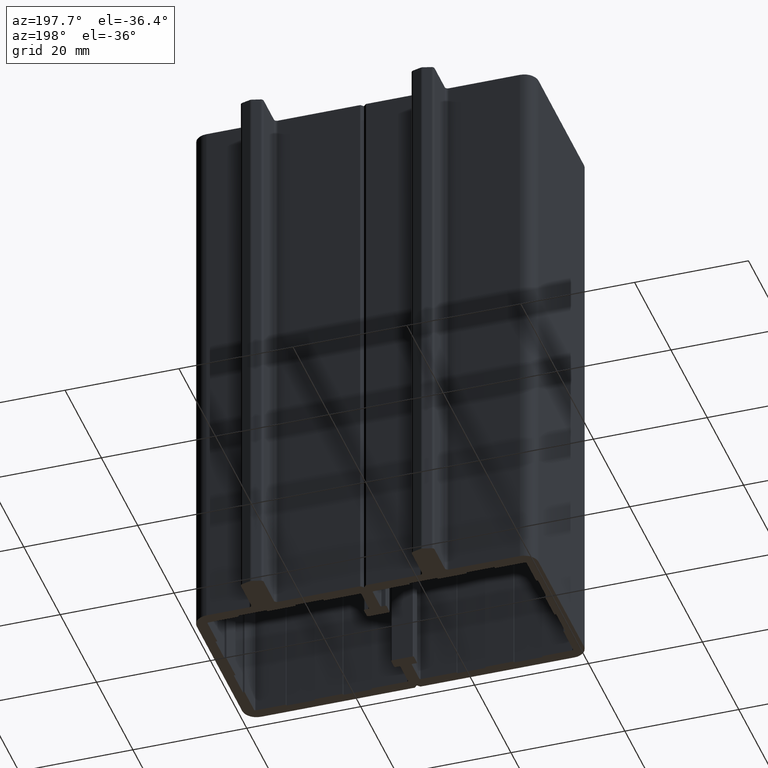
[diagram: clean part render]
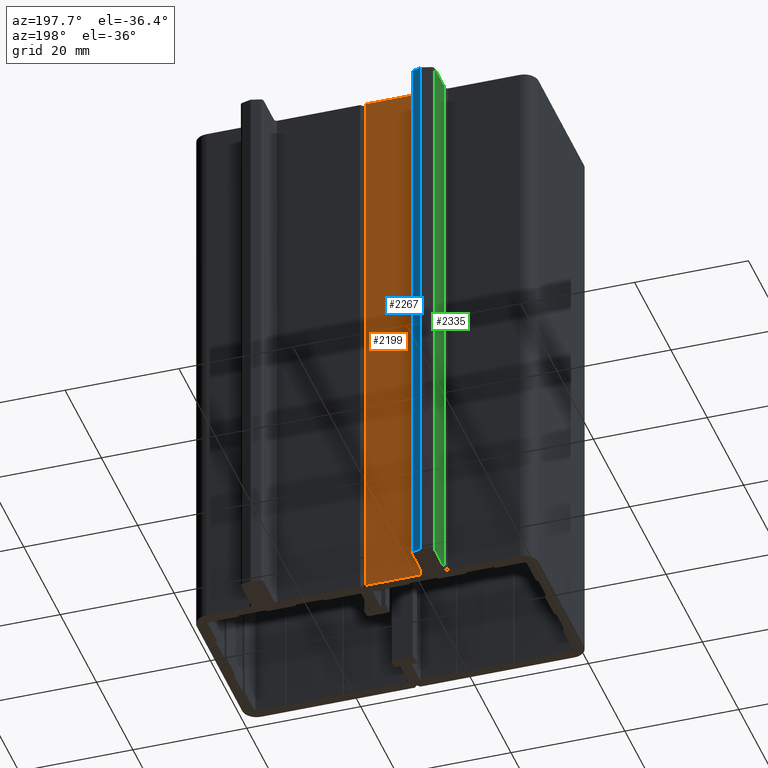
[diagram: same view with three faces highlighted in distinct colors, each labeled with its STEP entity id]
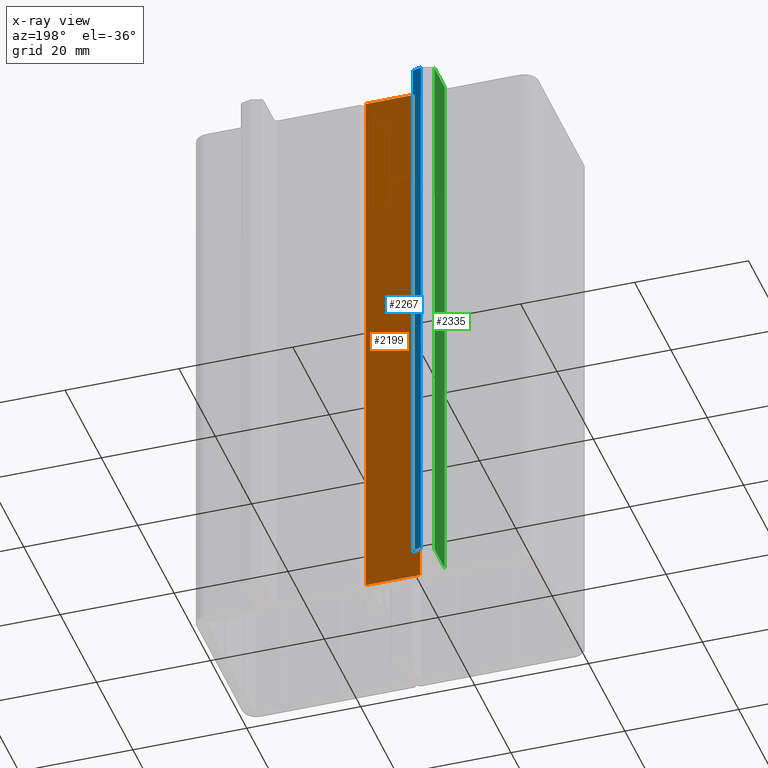
[diagram: x-ray of the same camera — body ghosted, the three highlighted faces saturated]
A machine part, auxiliary view with three faces highlighted in distinct colors.
The next image is the same camera in x-ray (body ghosted, the three faces saturated) — at least one of them is partly hidden behind the body in this view.
Their STEP definitions:

[orange] entity #2199 — the highlighted planar face has unit normal (0, -1, 0).
#68=CARTESIAN_POINT('',(29.511985819744005,29.980890048476475,100.0));
#69=VERTEX_POINT('',#68);
#76=CARTESIAN_POINT('',(20.011985819728739,29.980890048476510,100.0));
#77=VERTEX_POINT('',#76);
#78=CARTESIAN_POINT('',(29.511985819744005,29.980890048476475,100.0));
#79=DIRECTION('',(-1.0,0.0,0.0));
#80=VECTOR('',#79,9.500000000015270);
#81=LINE('',#78,#80);
#82=EDGE_CURVE('',#69,#77,#81,.T.);
#1240=CARTESIAN_POINT('',(20.011985819728739,29.980890048476510,0.0));
#1241=VERTEX_POINT('',#1240);
#1249=CARTESIAN_POINT('',(29.511985819744005,29.980890048476475,0.0));
#1250=VERTEX_POINT('',#1249);
#1251=CARTESIAN_POINT('',(29.511985819744005,29.980890048476475,0.0));
#1252=DIRECTION('',(-1.0,0.0,0.0));
#1253=VECTOR('',#1252,9.500000000015270);
#1254=LINE('',#1251,#1253);
#1255=EDGE_CURVE('',#1250,#1241,#1254,.T.);
#2172=CARTESIAN_POINT('',(29.511985819744005,29.980890048476475,100.0));
#2173=DIRECTION('',(0.0,0.0,-1.0));
#2174=VECTOR('',#2173,100.0);
#2175=LINE('',#2172,#2174);
#2176=EDGE_CURVE('',#69,#1250,#2175,.T.);
#2183=CARTESIAN_POINT('',(19.536985819727974,29.980890048476475,-5.0));
#2184=DIRECTION('',(0.0,-1.0,0.0));
#2185=DIRECTION('',(1.0,0.0,0.0));
#2186=AXIS2_PLACEMENT_3D('',#2183,#2184,#2185);
#2187=PLANE('',#2186);
#2188=ORIENTED_EDGE('',*,*,#1255,.T.);
#2189=CARTESIAN_POINT('',(20.011985819728739,29.980890048476510,100.0));
#2190=DIRECTION('',(0.0,0.0,-1.0));
#2191=VECTOR('',#2190,100.0);
#2192=LINE('',#2189,#2191);
#2193=EDGE_CURVE('',#77,#1241,#2192,.T.);
#2194=ORIENTED_EDGE('',*,*,#2193,.F.);
#2195=ORIENTED_EDGE('',*,*,#82,.F.);
#2196=ORIENTED_EDGE('',*,*,#2176,.T.);
#2197=EDGE_LOOP('',(#2188,#2194,#2195,#2196));
#2198=FACE_OUTER_BOUND('',#2197,.T.);
#2199=ADVANCED_FACE('',(#2198),#2187,.F.);

[blue] entity #2267 — the highlighted planar face has unit normal (-0.2588, -0.9659, 0).
#101=CARTESIAN_POINT('',(19.141395342279914,36.561929172974772,100.0));
#102=VERTEX_POINT('',#101);
#110=CARTESIAN_POINT('',(17.641395342280273,36.963852961621647,100.0));
#111=VERTEX_POINT('',#110);
#112=CARTESIAN_POINT('',(19.141395342279914,36.561929172974772,100.0));
#113=DIRECTION('',(-0.965925826289021,0.258819045102699,0.0));
#114=VECTOR('',#113,1.552914270614826);
#115=LINE('',#112,#114);
#116=EDGE_CURVE('',#102,#111,#115,.T.);
#1206=CARTESIAN_POINT('',(17.641395342280273,36.963852961621647,0.0));
#1207=VERTEX_POINT('',#1206);
#1215=CARTESIAN_POINT('',(19.141395342279914,36.561929172974772,0.0));
#1216=VERTEX_POINT('',#1215);
#1217=CARTESIAN_POINT('',(19.141395342279914,36.561929172974772,0.0));
#1218=DIRECTION('',(-0.965925826289021,0.258819045102699,0.0));
#1219=VECTOR('',#1218,1.552914270614826);
#1220=LINE('',#1217,#1219);
#1221=EDGE_CURVE('',#1216,#1207,#1220,.T.);
#2240=CARTESIAN_POINT('',(19.141395342279914,36.561929172974772,100.0));
#2241=DIRECTION('',(0.0,0.0,-1.0));
#2242=VECTOR('',#2241,100.0);
#2243=LINE('',#2240,#2242);
#2244=EDGE_CURVE('',#102,#1216,#2243,.T.);
#2251=CARTESIAN_POINT('',(17.566395342280291,36.983949151053999,-5.0));
#2252=DIRECTION('',(-0.258819045102698,-0.965925826289021,0.0));
#2253=DIRECTION('',(0.965925826289021,-0.258819045102698,0.0));
#2254=AXIS2_PLACEMENT_3D('',#2251,#2252,#2253);
#2255=PLANE('',#2254);
#2256=ORIENTED_EDGE('',*,*,#1221,.T.);
#2257=CARTESIAN_POINT('',(17.641395342280273,36.963852961621647,100.0));
#2258=DIRECTION('',(0.0,0.0,-1.0));
#2259=VECTOR('',#2258,100.0);
#2260=LINE('',#2257,#2259);
#2261=EDGE_CURVE('',#111,#1207,#2260,.T.);
#2262=ORIENTED_EDGE('',*,*,#2261,.F.);
#2263=ORIENTED_EDGE('',*,*,#116,.F.);
#2264=ORIENTED_EDGE('',*,*,#2244,.T.);
#2265=EDGE_LOOP('',(#2256,#2262,#2263,#2264));
#2266=FACE_OUTER_BOUND('',#2265,.T.);
#2267=ADVANCED_FACE('',(#2266),#2255,.F.);

[green] entity #2335 — the highlighted planar face has unit normal (1, 0, 0).
#135=CARTESIAN_POINT('',(15.511985819729011,36.078966259830224,100.0));
#136=VERTEX_POINT('',#135);
#144=CARTESIAN_POINT('',(15.511985819729038,30.480890048476461,100.0));
#145=VERTEX_POINT('',#144);
#146=CARTESIAN_POINT('',(15.511985819729011,36.078966259830224,100.0));
#147=DIRECTION('',(0.0,-1.0,0.0));
#148=VECTOR('',#147,5.598076211353764);
#149=LINE('',#146,#148);
#150=EDGE_CURVE('',#136,#145,#149,.T.);
#1172=CARTESIAN_POINT('',(15.511985819729038,30.480890048476461,0.0));
#1173=VERTEX_POINT('',#1172);
#1181=CARTESIAN_POINT('',(15.511985819729011,36.078966259830224,0.0));
#1182=VERTEX_POINT('',#1181);
#1183=CARTESIAN_POINT('',(15.511985819729011,36.078966259830224,0.0));
#1184=DIRECTION('',(0.0,-1.0,0.0));
#1185=VECTOR('',#1184,5.598076211353764);
#1186=LINE('',#1183,#1185);
#1187=EDGE_CURVE('',#1182,#1173,#1186,.T.);
#2308=CARTESIAN_POINT('',(15.511985819729011,36.078966259830224,100.0));
#2309=DIRECTION('',(0.0,0.0,-1.0));
#2310=VECTOR('',#2309,100.0);
#2311=LINE('',#2308,#2310);
#2312=EDGE_CURVE('',#136,#1182,#2311,.T.);
#2319=CARTESIAN_POINT('',(15.511985819729011,30.200986237908772,-5.0));
#2320=DIRECTION('',(1.0,0.0,0.0));
#2321=DIRECTION('',(0.0,1.0,0.0));
#2322=AXIS2_PLACEMENT_3D('',#2319,#2320,#2321);
#2323=PLANE('',#2322);
#2324=ORIENTED_EDGE('',*,*,#1187,.T.);
#2325=CARTESIAN_POINT('',(15.511985819729038,30.480890048476461,100.0));
#2326=DIRECTION('',(0.0,0.0,-1.0));
#2327=VECTOR('',#2326,100.0);
#2328=LINE('',#2325,#2327);
#2329=EDGE_CURVE('',#145,#1173,#2328,.T.);
#2330=ORIENTED_EDGE('',*,*,#2329,.F.);
#2331=ORIENTED_EDGE('',*,*,#150,.F.);
#2332=ORIENTED_EDGE('',*,*,#2312,.T.);
#2333=EDGE_LOOP('',(#2324,#2330,#2331,#2332));
#2334=FACE_OUTER_BOUND('',#2333,.T.);
#2335=ADVANCED_FACE('',(#2334),#2323,.F.);